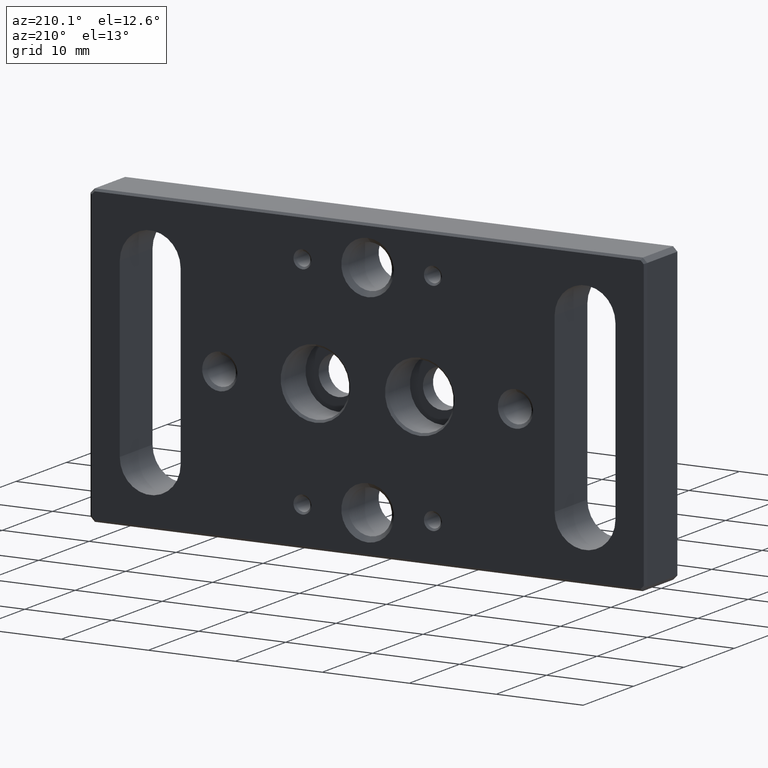
[diagram: clean part render]
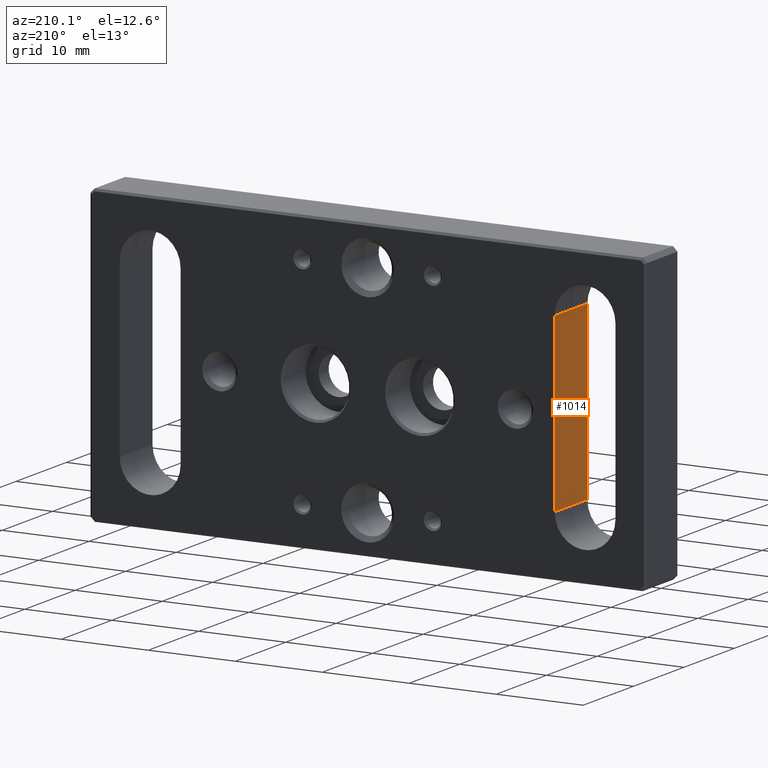
[diagram: same view with one face highlighted and labeled with its STEP entity id]
A machine part, auxiliary view. The second image highlights one B-rep face of the part: STEP entity #1014.
In plain terms, the highlighted planar face has unit normal (1, 0, -0).
Its self-contained STEP definition (entity closure, byte-faithful):
#9 = CARTESIAN_POINT ( 'NONE',  ( -21.50000000000000000, 0.000000000000000000, 10.00000000000000000 ) ) ;
#140 = EDGE_CURVE ( 'NONE', #1157, #303, #570, .T. ) ;
#207 = DIRECTION ( 'NONE',  ( -0.000000000000000000, -0.000000000000000000, -1.000000000000000000 ) ) ;
#242 = CARTESIAN_POINT ( 'NONE',  ( -21.50000000000000000, 0.000000000000000000, 10.00000000000000000 ) ) ;
#302 = ORIENTED_EDGE ( 'NONE', *, *, #1269, .T. ) ;
#303 = VERTEX_POINT ( 'NONE', #1219 ) ;
#304 = DIRECTION ( 'NONE',  ( -0.000000000000000000, 1.000000000000000000, -0.000000000000000000 ) ) ;
#369 = LINE ( 'NONE', #242, #972 ) ;
#379 = VECTOR ( 'NONE', #304, 1000.000000000000000 ) ;
#420 = ORIENTED_EDGE ( 'NONE', *, *, #1581, .F. ) ;
#432 = CARTESIAN_POINT ( 'NONE',  ( -21.50000000000000000, 0.000000000000000000, -10.00000000000000000 ) ) ;
#438 = VERTEX_POINT ( 'NONE', #619 ) ;
#570 = LINE ( 'NONE', #584, #1618 ) ;
#584 = CARTESIAN_POINT ( 'NONE',  ( -21.50000000000000000, 0.000000000000000000, -10.00000000000000000 ) ) ;
#619 = CARTESIAN_POINT ( 'NONE',  ( -21.50000000000000000, 6.500000000000000000, 10.00000000000000000 ) ) ;
#771 = EDGE_CURVE ( 'NONE', #1157, #438, #369, .T. ) ;
#796 = LINE ( 'NONE', #1431, #379 ) ;
#805 = DIRECTION ( 'NONE',  ( -0.000000000000000000, 0.000000000000000000, -1.000000000000000000 ) ) ;
#937 = DIRECTION ( 'NONE',  ( 1.000000000000000000, 0.000000000000000000, -0.000000000000000000 ) ) ;
#972 = VECTOR ( 'NONE', #1025, 1000.000000000000000 ) ;
#991 = CARTESIAN_POINT ( 'NONE',  ( -21.50000000000000000, 6.500000000000000000, -10.00000000000000000 ) ) ;
#1014 = ADVANCED_FACE ( 'NONE', ( #1308 ), #1567, .F. ) ;
#1025 = DIRECTION ( 'NONE',  ( -0.000000000000000000, 1.000000000000000000, -0.000000000000000000 ) ) ;
#1118 = AXIS2_PLACEMENT_3D ( 'NONE', #432, #937, #805 ) ;
#1137 = VECTOR ( 'NONE', #207, 1000.000000000000000 ) ;
#1157 = VERTEX_POINT ( 'NONE', #9 ) ;
#1188 = ORIENTED_EDGE ( 'NONE', *, *, #140, .F. ) ;
#1219 = CARTESIAN_POINT ( 'NONE',  ( -21.50000000000000000, 0.000000000000000000, -10.00000000000000000 ) ) ;
#1269 = EDGE_CURVE ( 'NONE', #438, #1427, #1340, .T. ) ;
#1308 = FACE_OUTER_BOUND ( 'NONE', #1582, .T. ) ;
#1325 = DIRECTION ( 'NONE',  ( -0.000000000000000000, -0.000000000000000000, -1.000000000000000000 ) ) ;
#1340 = LINE ( 'NONE', #991, #1137 ) ;
#1365 = CARTESIAN_POINT ( 'NONE',  ( -21.50000000000000000, 6.500000000000000000, -10.00000000000000000 ) ) ;
#1427 = VERTEX_POINT ( 'NONE', #1365 ) ;
#1431 = CARTESIAN_POINT ( 'NONE',  ( -21.50000000000000000, 0.000000000000000000, -10.00000000000000000 ) ) ;
#1537 = ORIENTED_EDGE ( 'NONE', *, *, #771, .T. ) ;
#1567 = PLANE ( 'NONE',  #1118 ) ;
#1581 = EDGE_CURVE ( 'NONE', #303, #1427, #796, .T. ) ;
#1582 = EDGE_LOOP ( 'NONE', ( #302, #420, #1188, #1537 ) ) ;
#1618 = VECTOR ( 'NONE', #1325, 1000.000000000000000 ) ;